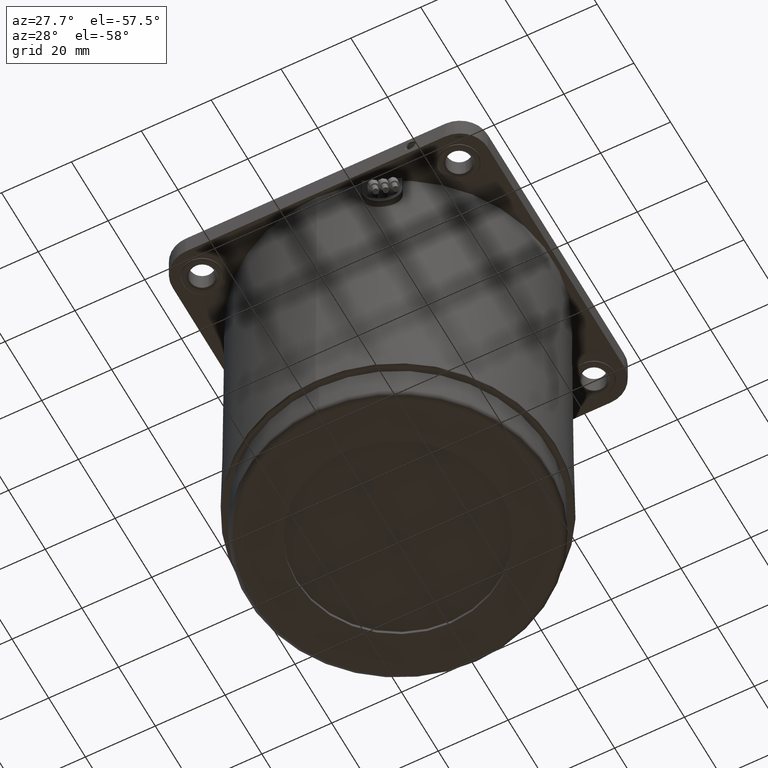
[diagram: clean part render]
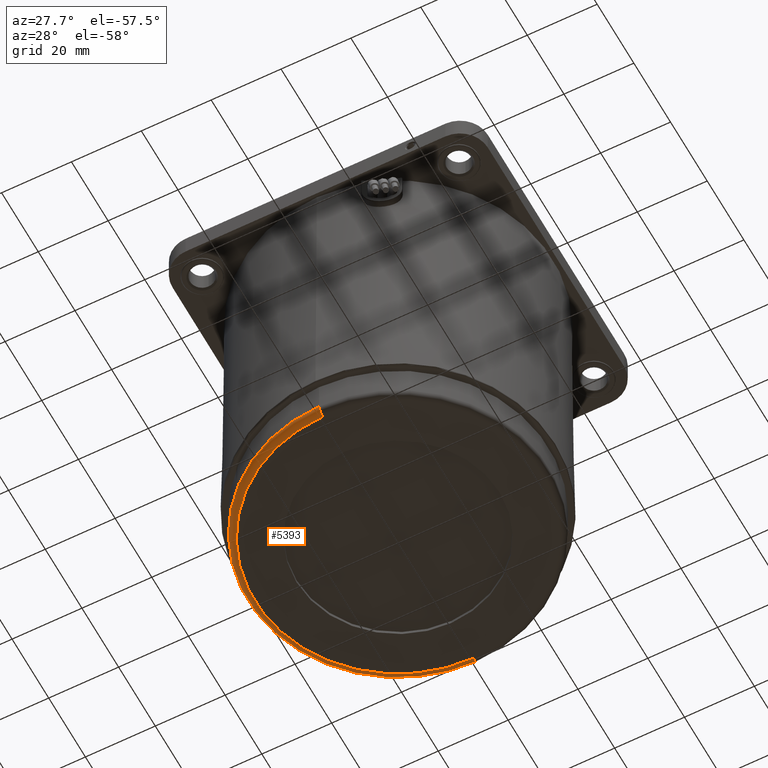
[diagram: same view with one face highlighted and labeled with its STEP entity id]
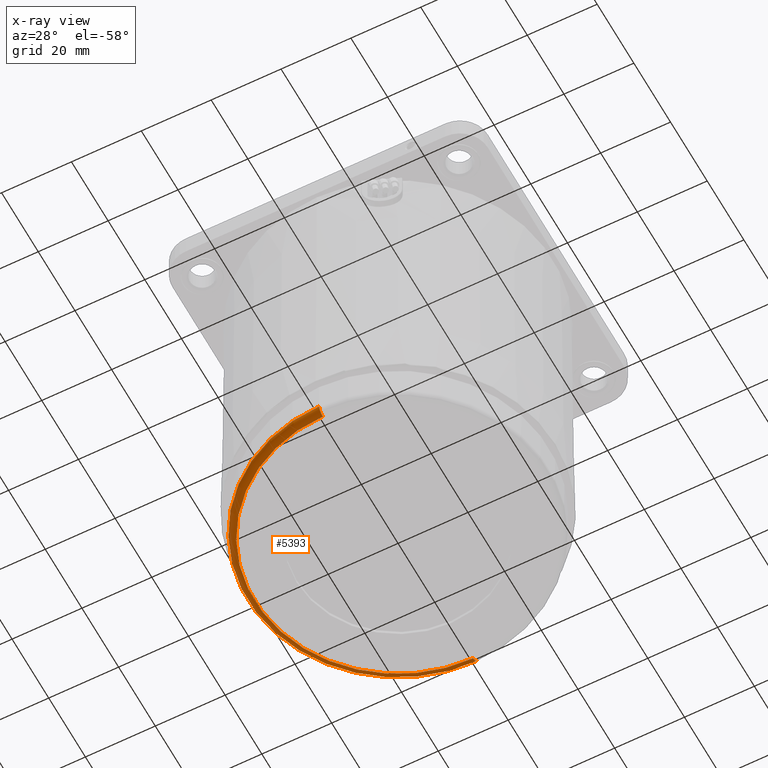
[diagram: x-ray of the same camera — body ghosted, the highlighted face saturated]
A machine part, auxiliary view. The second image highlights one B-rep face of the part: STEP entity #5393.
The next image is the same camera in x-ray: the body ghosted, the highlighted face saturated — about 0% of this face is hidden behind the body in this view.
In plain terms, the highlighted toroidal blend (fillet) surface has major radius 41.0174 mm and minor (blend) radius 2 mm.
Its self-contained STEP definition (entity closure, byte-faithful):
#608 = CIRCLE ( 'NONE', #662, 41.01737757881004900 ) ;
#609 = DIRECTION ( 'NONE',  ( 0.0000000000000000000, 0.0000000000000000000, -1.000000000000000000 ) ) ;
#610 = DIRECTION ( 'NONE',  ( 1.000000000000000000, 0.0000000000000000000, 0.0000000000000000000 ) ) ;
#611 = AXIS2_PLACEMENT_3D ( 'NONE', #627, #610, #609 ) ;
#612 = TOROIDAL_SURFACE ( 'NONE', #611, 41.01737757881004900, 2.000000000000000000 ) ;
#627 = CARTESIAN_POINT ( 'NONE',  ( 2.000000000000000000, 0.0000000000000000000, 0.0000000000000000000 ) ) ;
#629 = FACE_OUTER_BOUND ( 'NONE', #5519, .T. ) ;
#659 = DIRECTION ( 'NONE',  ( 0.0000000000000000000, 0.0000000000000000000, -1.000000000000000000 ) ) ;
#660 = DIRECTION ( 'NONE',  ( -1.000000000000000000, -0.0000000000000000000, -0.0000000000000000000 ) ) ;
#661 = CARTESIAN_POINT ( 'NONE',  ( 0.0000000000000000000, 0.0000000000000000000, 0.0000000000000000000 ) ) ;
#662 = AXIS2_PLACEMENT_3D ( 'NONE', #661, #660, #659 ) ;
#5391 = ORIENTED_EDGE ( 'NONE', *, *, #5406, .F. ) ;
#5393 = ADVANCED_FACE ( 'NONE', ( #629 ), #612, .T. ) ;
#5397 = ORIENTED_EDGE ( 'NONE', *, *, #17231, .T. ) ;
#5406 = EDGE_CURVE ( 'NONE', #17235, #17240, #608, .T. ) ;
#5484 = ORIENTED_EDGE ( 'NONE', *, *, #17245, .F. ) ;
#5508 = ORIENTED_EDGE ( 'NONE', *, *, #17244, .F. ) ;
#5519 = EDGE_LOOP ( 'NONE', ( #5508, #5391, #5397, #5484 ) ) ;
#11626 = AXIS2_PLACEMENT_3D ( 'NONE', #11673, #11667, #11666 ) ;
#11627 = CARTESIAN_POINT ( 'NONE',  ( 1.982546929003252200, -5.272918674955787400E-015, -43.01730142493838100 ) ) ;
#11666 = DIRECTION ( 'NONE',  ( 0.0000000000000000000, 0.0000000000000000000, -1.000000000000000000 ) ) ;
#11667 = DIRECTION ( 'NONE',  ( 0.0000000000000000000, -1.000000000000000000, 0.0000000000000000000 ) ) ;
#11672 = CARTESIAN_POINT ( 'NONE',  ( 0.0000000000000000000, 0.0000000000000000000, -41.01737757881004900 ) ) ;
#11673 = CARTESIAN_POINT ( 'NONE',  ( 2.000000000000000000, 0.0000000000000000000, -41.01737757881004900 ) ) ;
#11678 = CIRCLE ( 'NONE', #11626, 2.000000000000001800 ) ;
#11689 = DIRECTION ( 'NONE',  ( 0.0000000000000000000, 0.0000000000000000000, -1.000000000000000000 ) ) ;
#11690 = DIRECTION ( 'NONE',  ( 1.000000000000000000, 0.0000000000000000000, 0.0000000000000000000 ) ) ;
#11691 = CARTESIAN_POINT ( 'NONE',  ( 1.982546929003252200, 0.0000000000000000000, 0.0000000000000000000 ) ) ;
#11694 = DIRECTION ( 'NONE',  ( 0.0000000000000000000, 1.224646799147353500E-016, 1.000000000000000000 ) ) ;
#11695 = DIRECTION ( 'NONE',  ( 0.0000000000000000000, 1.000000000000000000, -1.224646799147353200E-016 ) ) ;
#11696 = CARTESIAN_POINT ( 'NONE',  ( 2.000000000000000000, 5.023180016130813700E-015, 41.01737757881004900 ) ) ;
#11697 = AXIS2_PLACEMENT_3D ( 'NONE', #11696, #11695, #11694 ) ;
#11698 = CIRCLE ( 'NONE', #11697, 2.000000000000001800 ) ;
#11708 = CIRCLE ( 'NONE', #11714, 43.01730142493838100 ) ;
#11711 = CARTESIAN_POINT ( 'NONE',  ( 0.0000000000000000000, 5.145640032965790100E-015, 41.01737757881004900 ) ) ;
#11714 = AXIS2_PLACEMENT_3D ( 'NONE', #11691, #11690, #11689 ) ;
#11741 = CARTESIAN_POINT ( 'NONE',  ( 1.982546929003252200, 0.0000000000000000000, 43.01730142493838100 ) ) ;
#17220 = VERTEX_POINT ( 'NONE', #11627 ) ;
#17231 = EDGE_CURVE ( 'NONE', #17235, #17220, #11678, .T. ) ;
#17235 = VERTEX_POINT ( 'NONE', #11672 ) ;
#17240 = VERTEX_POINT ( 'NONE', #11711 ) ;
#17244 = EDGE_CURVE ( 'NONE', #17240, #17255, #11698, .T. ) ;
#17245 = EDGE_CURVE ( 'NONE', #17255, #17220, #11708, .T. ) ;
#17255 = VERTEX_POINT ( 'NONE', #11741 ) ;